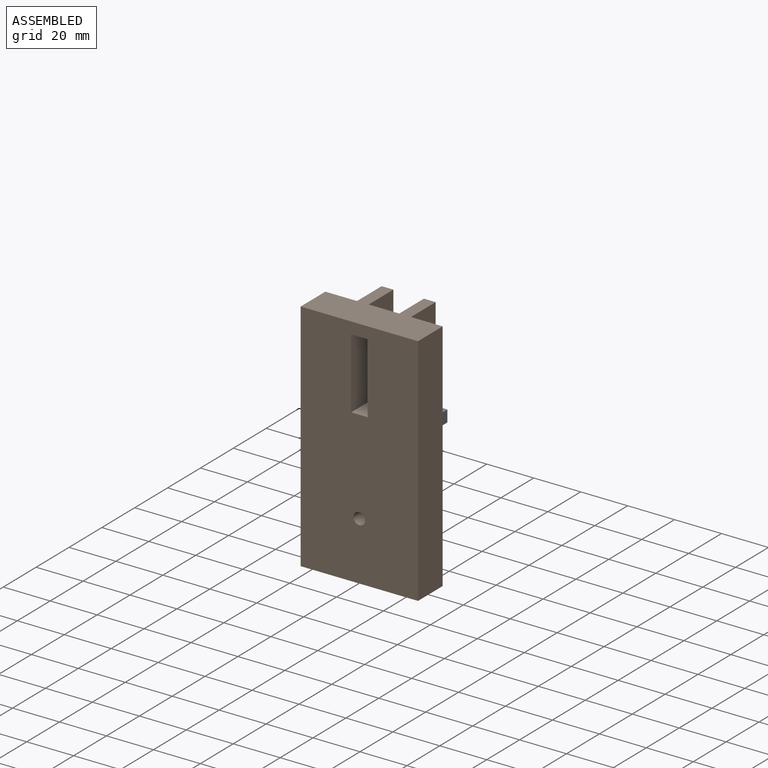
[diagram: assembled view]
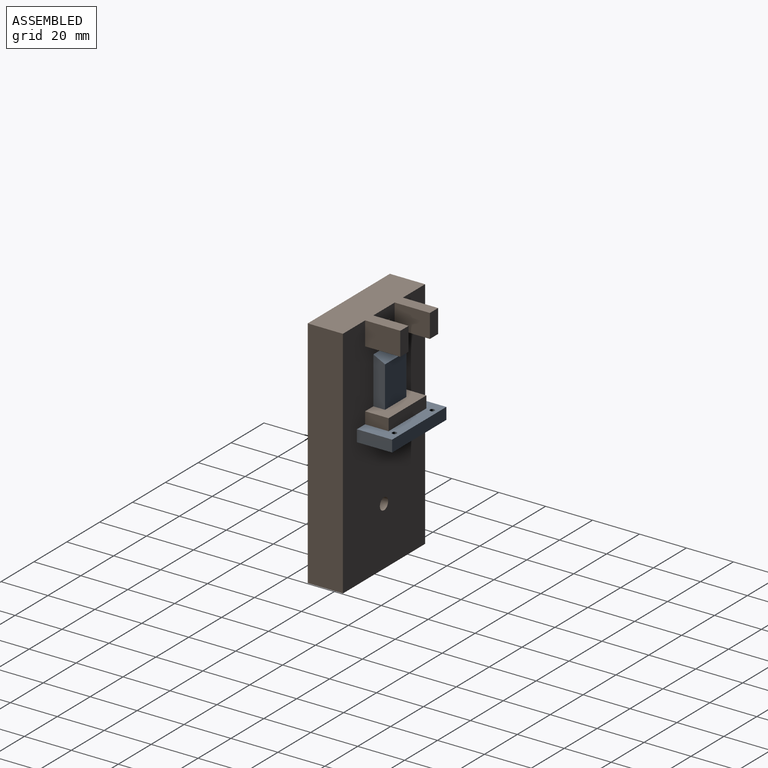
[diagram: assembled view, second angle]
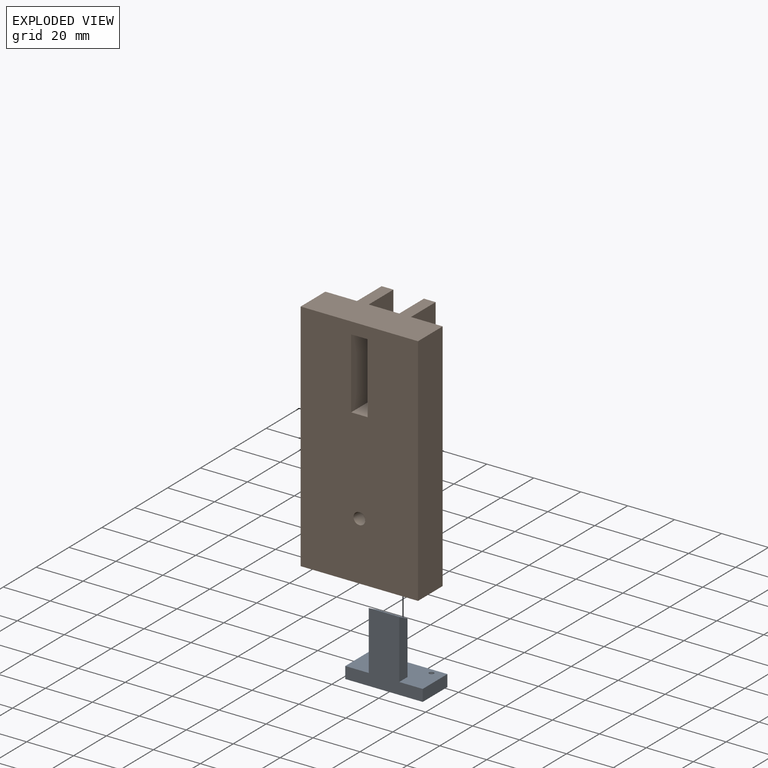
[diagram: exploded view]
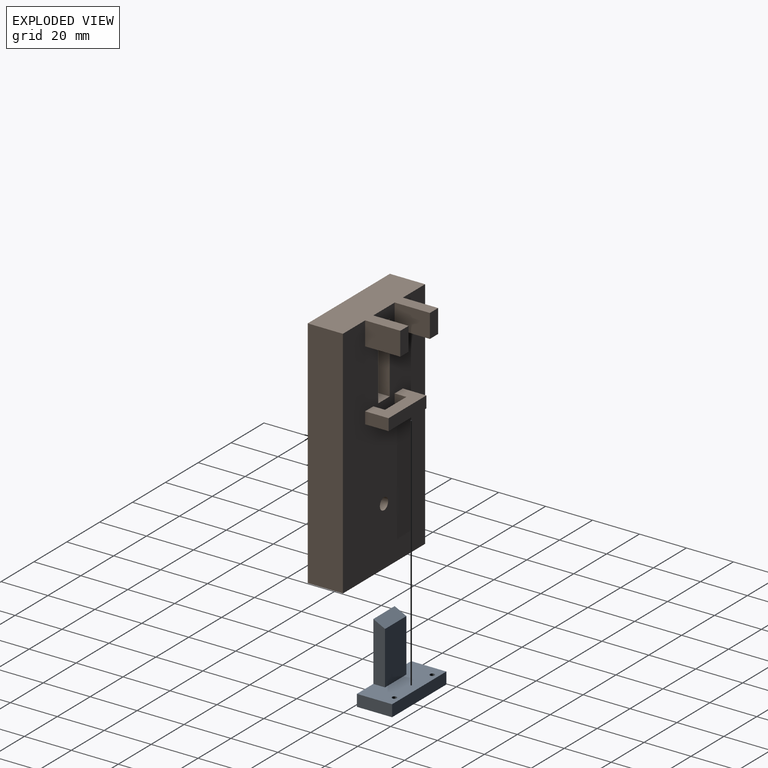
[diagram: exploded view, second angle]
ASSEMBLY  parts=2 mates=2
PART A: 14 faces, bbox 33x15x30 mm
  f0: plane 25x5mm, normal (1,0,0), area 118.8mm2, adj f2,f3,f4,f13
  f1: plane 25x5mm, normal (-1,0,0), area 118.8mm2, adj f2,f3,f4,f13
  f2: plane 33x15mm, normal (0,0,1), area 423.7mm2, adj f0,f1,f3,f4,f5,f7,f8,f9
  f3: plane 22.5x13mm, normal (0,-1,0), area 292.5mm2, adj f0,f1,f2,f13
  f4: plane 33x30mm, normal (0,1,0), area 490mm2, adj f0,f1,f2,f5,f6,f7,f13
  f5: plane 15x5mm, normal (-1,0,0), area 75mm2, adj f2,f4,f6,f8
  f6: plane 33x15mm, normal (0,0,-1), area 495mm2, adj f4,f5,f7,f8
  f7: plane 15x5mm, normal (1,0,0), area 75mm2, adj f2,f4,f6,f8
  f8: plane 33x5mm, normal (0,-1,0), area 165mm2, adj f2,f5,f6,f7
  f9: cylinder r=1mm len=2mm, axis (0,0,1), area 6.3mm2, adj f2,f10
  f10: plane 2x2mm, normal (0,0,1), area 3.1mm2, adj f9
  f11: cylinder r=1mm len=2mm, axis (0,0,1), area 6.3mm2, adj f2,f12
  f12: plane 2x2mm, normal (0,0,1), area 3.1mm2, adj f11
  f13: plane 13x5mm, normal (0,-0.45,0.89), area 72.7mm2, adj f0,f1,f3,f4
PART B: 31 faces, bbox 50x30x100 mm
  f0: plane 100x50mm, normal (0,1,0), area 4620.4mm2, adj f1,f2,f3,f4,f5,f6,f7,f8
  f1: plane 30x15mm, normal (1,0,0), area 450mm2, adj f0,f2,f7,f10
  f2: plane 15x7mm, normal (0,0,-1), area 105mm2, adj f0,f1,f3,f10
  f3: plane 30x15mm, normal (-1,0,0), area 450mm2, adj f0,f2,f7,f10
  f4: plane 50x30mm, normal (0,0,1), area 900mm2, adj f0,f5,f8,f10,f19,f21,f22,f23
  f5: plane 100x15mm, normal (-1,0,0), area 1500mm2, adj f0,f4,f6,f10
  f6: plane 50x15mm, normal (0,0,-1), area 750mm2, adj f0,f5,f8,f10
  f7: plane 15x7mm, normal (0,0,1), area 105mm2, adj f0,f1,f3,f10
  f8: plane 100x15mm, normal (1,0,0), area 1500mm2, adj f0,f4,f6,f10
  f9: cylinder r=2.5mm len=15mm, axis (0,1,0), area 235.6mm2, adj f0,f10
  f10: plane 100x50mm, normal (0,-1,0), area 4770.4mm2, adj f1,f2,f3,f4,f5,f6,f7,f8
  f11: plane 23x10mm, normal (0,0,1), area 165mm2, adj f0,f12,f14,f15,f16,f17,f18
  f12: plane 10x5mm, normal (-1,0,0), area 50mm2, adj f0,f11,f13,f18
  f13: plane 23x10mm, normal (0,0,-1), area 165mm2, adj f0,f12,f14,f15,f16,f17,f18
  f14: plane 5x5mm, normal (1,0,0), area 25mm2, adj f0,f11,f13,f17
  f15: plane 5x5mm, normal (-1,0,0), area 25mm2, adj f0,f11,f13,f17
  f16: plane 10x5mm, normal (1,0,0), area 50mm2, adj f0,f11,f13,f18
  f17: plane 13x5mm, normal (0,-1,0), area 65mm2, adj f11,f13,f14,f15
  f18: plane 23x5mm, normal (0,1,0), area 115mm2, adj f11,f12,f13,f16
  f19: plane 15x10mm, normal (-1,0,0), area 150mm2, adj f0,f4,f20,f22
  f20: plane 15x5mm, normal (0,0,-1), area 71.9mm2, adj f0,f19,f21,f22,f29
  f21: plane 15x10mm, normal (1,0,0), area 150mm2, adj f0,f4,f20,f22
  f22: plane 10x5mm, normal (0,1,0), area 50mm2, adj f4,f19,f20,f21
  f23: plane 15x10mm, normal (-1,0,0), area 150mm2, adj f0,f4,f24,f26
  f24: plane 15x5mm, normal (0,0,-1), area 71.9mm2, adj f0,f23,f25,f26,f27
  f25: plane 15x10mm, normal (1,0,0), area 150mm2, adj f0,f4,f24,f26
  f26: plane 10x5mm, normal (0,1,0), area 50mm2, adj f4,f23,f24,f25
  f27: cylinder r=1mm len=2mm, axis (0,0,-1), area 6.3mm2, adj f24,f28
  f28: plane 2x2mm, normal (0,0,-1), area 3.1mm2, adj f27
  f29: cylinder r=1mm len=2mm, axis (0,0,-1), area 6.3mm2, adj f20,f30
  f30: plane 2x2mm, normal (0,0,-1), area 3.1mm2, adj f29
PLACE A rot(axis=(0,0,1),180deg) t=(0,3.21,10.91)mm
PLACE B t=(0,3.21,0)mm fixed
MATE slider B.f11 <-> A.f2  axis (0,0,1) through (6.5,8.21,13.78)mm
MATE planar A.f4 <-> B.f0  axis (0,-1,0) through (0,3.21,3.78)mm
